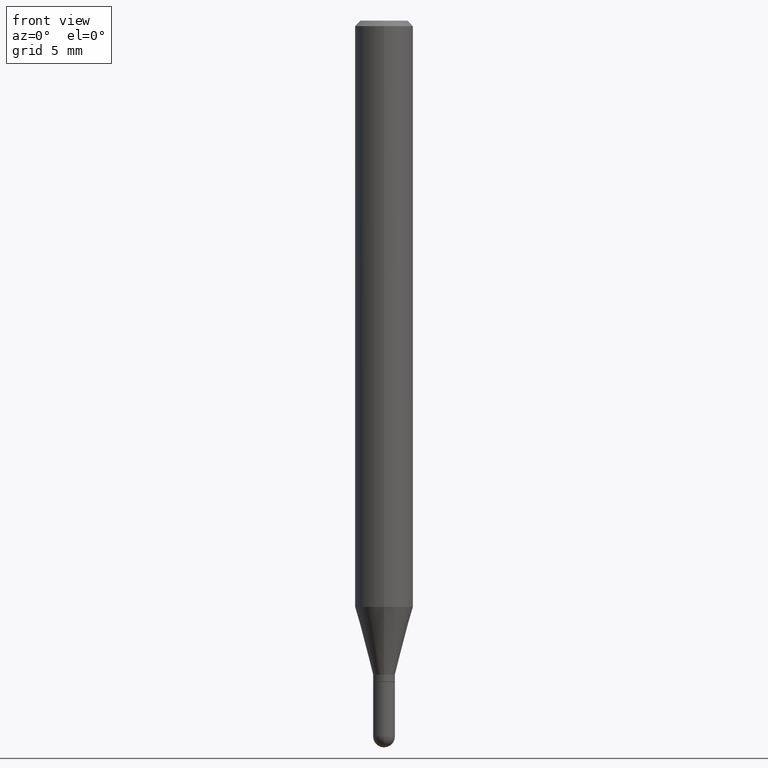
[diagram: clean part render]
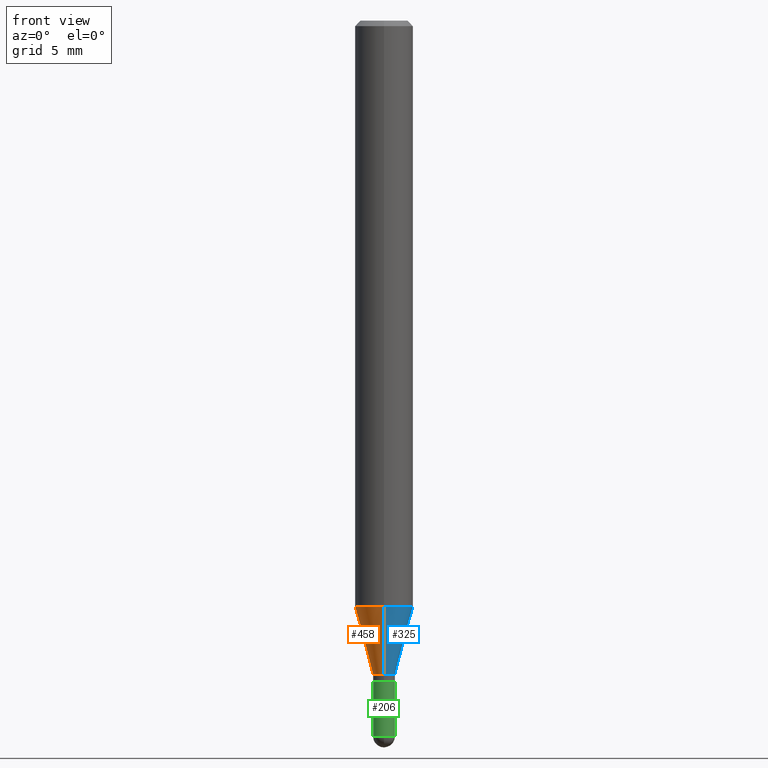
[diagram: same view with three faces highlighted in distinct colors, each labeled with its STEP entity id]
A machine part, front view with three faces highlighted in distinct colors.
Their STEP definitions:

[orange] entity #458 — the highlighted conical surface has half-angle 15 deg.
#15 = LINE ( 'NONE', #183, #130 ) ;
#35 = DIRECTION ( 'NONE',  ( -2.445463423752014680E-29, 3.491489046793725372E-15, 1.000000000000000000 ) ) ;
#63 = EDGE_CURVE ( 'NONE', #391, #507, #15, .T. ) ;
#87 = EDGE_LOOP ( 'NONE', ( #147, #276, #268, #244 ) ) ;
#104 = CARTESIAN_POINT ( 'NONE',  ( 4.332138455176693221E-29, -6.185172846395084500E-15, -1.771499999999999853 ) ) ;
#118 = VERTEX_POINT ( 'NONE', #162 ) ;
#125 = AXIS2_PLACEMENT_3D ( 'NONE', #104, #35, #139 ) ;
#128 = LINE ( 'NONE', #404, #492 ) ;
#130 = VECTOR ( 'NONE', #187, 39.37007874015748854 ) ;
#139 = DIRECTION ( 'NONE',  ( -6.982962677686265133E-15, -1.000000000000000000, 0.000000000000000000 ) ) ;
#142 = CARTESIAN_POINT ( 'NONE',  ( -5.499083108677547901E-16, -0.07875000000000556555, -1.587883100267612591 ) ) ;
#146 = CIRCLE ( 'NONE', #125, 0.02955000000000019417 ) ;
#147 = ORIENTED_EDGE ( 'NONE', *, *, #442, .F. ) ;
#162 = CARTESIAN_POINT ( 'NONE',  ( 5.595524044111173573E-16, 0.07874999999999443556, -1.587883100267613035 ) ) ;
#183 = CARTESIAN_POINT ( 'NONE',  ( -2.063465471255871845E-16, -0.02955000000000637672, -1.771499999999999853 ) ) ;
#187 = DIRECTION ( 'NONE',  ( -1.807323732225332900E-15, -0.2588190451025185190, 0.9659258262890689783 ) ) ;
#226 = DIRECTION ( 'NONE',  ( -6.982962677686265133E-15, -1.000000000000000000, 0.000000000000000000 ) ) ;
#244 = ORIENTED_EDGE ( 'NONE', *, *, #285, .F. ) ;
#260 = DIRECTION ( 'NONE',  ( -2.445463423752014680E-29, 3.491489046793725372E-15, 1.000000000000000000 ) ) ;
#261 = FACE_OUTER_BOUND ( 'NONE', #87, .T. ) ;
#268 = ORIENTED_EDGE ( 'NONE', *, *, #63, .T. ) ;
#272 = CONICAL_SURFACE ( 'NONE', #440, 0.02955000000000019417, 0.2617993877991506291 ) ;
#276 = ORIENTED_EDGE ( 'NONE', *, *, #468, .T. ) ;
#285 = EDGE_CURVE ( 'NONE', #118, #507, #472, .T. ) ;
#316 = CARTESIAN_POINT ( 'NONE',  ( -2.063465471255871845E-16, -0.02955000000000637672, -1.771499999999999853 ) ) ;
#339 = CARTESIAN_POINT ( 'NONE',  ( 3.883110042898400634E-29, -5.544076452173231922E-15, -1.587883100267612813 ) ) ;
#346 = DIRECTION ( 'NONE',  ( -6.982962677686264344E-15, -1.000000000000000000, 3.469013325287953293E-15 ) ) ;
#354 = AXIS2_PLACEMENT_3D ( 'NONE', #339, #260, #346 ) ;
#365 = DIRECTION ( 'NONE',  ( 1.839019923739602682E-15, 0.2588190451025252914, 0.9659258262890670910 ) ) ;
#391 = VERTEX_POINT ( 'NONE', #316 ) ;
#404 = CARTESIAN_POINT ( 'NONE',  ( 2.099653784171542487E-16, 0.02954999999999400814, -1.771499999999999853 ) ) ;
#428 = VERTEX_POINT ( 'NONE', #443 ) ;
#440 = AXIS2_PLACEMENT_3D ( 'NONE', #459, #504, #226 ) ;
#442 = EDGE_CURVE ( 'NONE', #428, #118, #128, .T. ) ;
#443 = CARTESIAN_POINT ( 'NONE',  ( 3.847588914141360372E-16, 0.02954999999999400814, -1.771499999999999853 ) ) ;
#458 = ADVANCED_FACE ( 'NONE', ( #261 ), #272, .T. ) ;
#459 = CARTESIAN_POINT ( 'NONE',  ( 4.332138455176693221E-29, -6.185172846395084500E-15, -1.771499999999999853 ) ) ;
#468 = EDGE_CURVE ( 'NONE', #428, #391, #146, .T. ) ;
#472 = CIRCLE ( 'NONE', #354, 0.07875000000000000056 ) ;
#492 = VECTOR ( 'NONE', #365, 39.37007874015748143 ) ;
#504 = DIRECTION ( 'NONE',  ( -2.445463423752014680E-29, 3.491489046793725372E-15, 1.000000000000000000 ) ) ;
#507 = VERTEX_POINT ( 'NONE', #142 ) ;

[blue] entity #325 — the highlighted conical surface has half-angle 15 deg.
#15 = LINE ( 'NONE', #183, #130 ) ;
#32 = CIRCLE ( 'NONE', #426, 0.07875000000000000056 ) ;
#34 = DIRECTION ( 'NONE',  ( -6.982962677686265133E-15, -1.000000000000000000, 0.000000000000000000 ) ) ;
#51 = ORIENTED_EDGE ( 'NONE', *, *, #442, .T. ) ;
#54 = AXIS2_PLACEMENT_3D ( 'NONE', #195, #474, #126 ) ;
#63 = EDGE_CURVE ( 'NONE', #391, #507, #15, .T. ) ;
#75 = DIRECTION ( 'NONE',  ( -2.445463423752014680E-29, 3.491489046793725372E-15, 1.000000000000000000 ) ) ;
#118 = VERTEX_POINT ( 'NONE', #162 ) ;
#126 = DIRECTION ( 'NONE',  ( -6.982962677686265133E-15, -1.000000000000000000, 0.000000000000000000 ) ) ;
#128 = LINE ( 'NONE', #404, #492 ) ;
#130 = VECTOR ( 'NONE', #187, 39.37007874015748854 ) ;
#142 = CARTESIAN_POINT ( 'NONE',  ( -5.499083108677547901E-16, -0.07875000000000556555, -1.587883100267612591 ) ) ;
#162 = CARTESIAN_POINT ( 'NONE',  ( 5.595524044111173573E-16, 0.07874999999999443556, -1.587883100267613035 ) ) ;
#176 = ORIENTED_EDGE ( 'NONE', *, *, #307, .F. ) ;
#178 = CIRCLE ( 'NONE', #508, 0.02955000000000019417 ) ;
#183 = CARTESIAN_POINT ( 'NONE',  ( -2.063465471255871845E-16, -0.02955000000000637672, -1.771499999999999853 ) ) ;
#187 = DIRECTION ( 'NONE',  ( -1.807323732225332900E-15, -0.2588190451025185190, 0.9659258262890689783 ) ) ;
#195 = CARTESIAN_POINT ( 'NONE',  ( 4.332138455176693221E-29, -6.185172846395084500E-15, -1.771499999999999853 ) ) ;
#202 = CARTESIAN_POINT ( 'NONE',  ( 3.883110042898400634E-29, -5.544076452173231922E-15, -1.587883100267612813 ) ) ;
#229 = CONICAL_SURFACE ( 'NONE', #54, 0.02955000000000019417, 0.2617993877991506291 ) ;
#241 = DIRECTION ( 'NONE',  ( -2.445463423752014680E-29, 3.491489046793725372E-15, 1.000000000000000000 ) ) ;
#245 = DIRECTION ( 'NONE',  ( -6.982962677686264344E-15, -1.000000000000000000, 3.469013325287953293E-15 ) ) ;
#291 = EDGE_CURVE ( 'NONE', #391, #428, #178, .T. ) ;
#307 = EDGE_CURVE ( 'NONE', #507, #118, #32, .T. ) ;
#316 = CARTESIAN_POINT ( 'NONE',  ( -2.063465471255871845E-16, -0.02955000000000637672, -1.771499999999999853 ) ) ;
#325 = ADVANCED_FACE ( 'NONE', ( #487 ), #229, .T. ) ;
#356 = EDGE_LOOP ( 'NONE', ( #359, #51, #176, #415 ) ) ;
#359 = ORIENTED_EDGE ( 'NONE', *, *, #291, .T. ) ;
#365 = DIRECTION ( 'NONE',  ( 1.839019923739602682E-15, 0.2588190451025252914, 0.9659258262890670910 ) ) ;
#391 = VERTEX_POINT ( 'NONE', #316 ) ;
#404 = CARTESIAN_POINT ( 'NONE',  ( 2.099653784171542487E-16, 0.02954999999999400814, -1.771499999999999853 ) ) ;
#415 = ORIENTED_EDGE ( 'NONE', *, *, #63, .F. ) ;
#417 = CARTESIAN_POINT ( 'NONE',  ( 4.332138455176693221E-29, -6.185172846395084500E-15, -1.771499999999999853 ) ) ;
#426 = AXIS2_PLACEMENT_3D ( 'NONE', #202, #241, #245 ) ;
#428 = VERTEX_POINT ( 'NONE', #443 ) ;
#442 = EDGE_CURVE ( 'NONE', #428, #118, #128, .T. ) ;
#443 = CARTESIAN_POINT ( 'NONE',  ( 3.847588914141360372E-16, 0.02954999999999400814, -1.771499999999999853 ) ) ;
#474 = DIRECTION ( 'NONE',  ( -2.445463423752014680E-29, 3.491489046793725372E-15, 1.000000000000000000 ) ) ;
#487 = FACE_OUTER_BOUND ( 'NONE', #356, .T. ) ;
#492 = VECTOR ( 'NONE', #365, 39.37007874015748143 ) ;
#507 = VERTEX_POINT ( 'NONE', #142 ) ;
#508 = AXIS2_PLACEMENT_3D ( 'NONE', #417, #75, #34 ) ;

[green] entity #206 — the highlighted cylindrical surface (edge-blend (fillet) strip) has radius 0.7506 mm, axis along (-0, 0, 1).
#1 = CARTESIAN_POINT ( 'NONE',  ( -2.099653784170616315E-16, -0.02955000000000669938, -1.938949999999999729 ) ) ;
#28 = EDGE_CURVE ( 'NONE', #460, #313, #506, .T. ) ;
#48 = ORIENTED_EDGE ( 'NONE', *, *, #113, .T. ) ;
#55 = DIRECTION ( 'NONE',  ( -2.445468806185136597E-29, 3.491481338843145583E-15, 1.000000000000000000 ) ) ;
#58 = VECTOR ( 'NONE', #489, 39.37007874015748143 ) ;
#80 = DIRECTION ( 'NONE',  ( -2.445468806185136597E-29, 3.491481338843145583E-15, 1.000000000000000000 ) ) ;
#113 = EDGE_CURVE ( 'NONE', #240, #295, #283, .T. ) ;
#148 = DIRECTION ( 'NONE',  ( 1.000000000000000000, -6.982962677686261977E-15, 0.000000000000000000 ) ) ;
#149 = VERTEX_POINT ( 'NONE', #299 ) ;
#155 = DIRECTION ( 'NONE',  ( 1.000000000000000000, -6.982962677686261977E-15, 0.000000000000000000 ) ) ;
#160 = CARTESIAN_POINT ( 'NONE',  ( -0.02954999999999999988, 2.099653784171096041E-16, -1.453545319170324550E-30 ) ) ;
#181 = ORIENTED_EDGE ( 'NONE', *, *, #311, .T. ) ;
#188 = CYLINDRICAL_SURFACE ( 'NONE', #281, 0.02954999999999999988 ) ;
#205 = VECTOR ( 'NONE', #312, 39.37007874015748143 ) ;
#206 = ADVANCED_FACE ( 'NONE', ( #210 ), #188, .T. ) ;
#207 = LINE ( 'NONE', #360, #58 ) ;
#210 = FACE_OUTER_BOUND ( 'NONE', #400, .T. ) ;
#238 = ORIENTED_EDGE ( 'NONE', *, *, #408, .T. ) ;
#240 = VERTEX_POINT ( 'NONE', #1 ) ;
#255 = CIRCLE ( 'NONE', #323, 0.02954999999999999988 ) ;
#279 = CARTESIAN_POINT ( 'NONE',  ( 4.741641741752670047E-29, -6.769807741949916508E-15, -1.938949999999999729 ) ) ;
#281 = AXIS2_PLACEMENT_3D ( 'NONE', #420, #80, #293 ) ;
#283 = CIRCLE ( 'NONE', #380, 0.02954999999999999988 ) ;
#293 = DIRECTION ( 'NONE',  ( 1.000000000000000000, -6.982962677686266711E-15, 4.876176775795935793E-29 ) ) ;
#295 = VERTEX_POINT ( 'NONE', #439 ) ;
#299 = CARTESIAN_POINT ( 'NONE',  ( -0.02954999999999999988, -6.302083753692712485E-15, -1.938949999999999729 ) ) ;
#311 = EDGE_CURVE ( 'NONE', #149, #240, #255, .T. ) ;
#312 = DIRECTION ( 'NONE',  ( -2.445468806185136877E-29, 3.491481338843145188E-15, 1.000000000000000000 ) ) ;
#313 = VERTEX_POINT ( 'NONE', #361 ) ;
#317 = CARTESIAN_POINT ( 'NONE',  ( 4.380568272519435501E-29, -6.254290522269726388E-15, -1.791300000000000114 ) ) ;
#320 = CARTESIAN_POINT ( 'NONE',  ( 4.741641741752670047E-29, -6.769807741949916508E-15, -1.938949999999999729 ) ) ;
#323 = AXIS2_PLACEMENT_3D ( 'NONE', #320, #55, #155 ) ;
#349 = ORIENTED_EDGE ( 'NONE', *, *, #28, .F. ) ;
#352 = DIRECTION ( 'NONE',  ( -2.445468806185136597E-29, 3.491481338843145583E-15, 1.000000000000000000 ) ) ;
#360 = CARTESIAN_POINT ( 'NONE',  ( 0.02954999999999999988, -2.063465471256291914E-16, 1.440910237247699070E-30 ) ) ;
#361 = CARTESIAN_POINT ( 'NONE',  ( 0.02954999999999999988, -6.460637069395355998E-15, -1.791300000000000114 ) ) ;
#367 = EDGE_CURVE ( 'NONE', #149, #460, #392, .T. ) ;
#380 = AXIS2_PLACEMENT_3D ( 'NONE', #279, #352, #148 ) ;
#392 = LINE ( 'NONE', #160, #205 ) ;
#400 = EDGE_LOOP ( 'NONE', ( #475, #181, #48, #238, #349 ) ) ;
#408 = EDGE_CURVE ( 'NONE', #295, #313, #207, .T. ) ;
#420 = CARTESIAN_POINT ( 'NONE',  ( 0.000000000000000000, 0.000000000000000000, 0.000000000000000000 ) ) ;
#439 = CARTESIAN_POINT ( 'NONE',  ( 0.02954999999999999988, -6.718395679235450664E-15, -1.938949999999999729 ) ) ;
#454 = CARTESIAN_POINT ( 'NONE',  ( -0.02954999999999999988, -6.302083753692712485E-15, -1.791300000000000114 ) ) ;
#460 = VERTEX_POINT ( 'NONE', #454 ) ;
#471 = DIRECTION ( 'NONE',  ( 1.000000000000000000, -6.982962677686261977E-15, 0.000000000000000000 ) ) ;
#475 = ORIENTED_EDGE ( 'NONE', *, *, #367, .F. ) ;
#485 = AXIS2_PLACEMENT_3D ( 'NONE', #317, #498, #471 ) ;
#489 = DIRECTION ( 'NONE',  ( -2.445468806185136877E-29, 3.491481338843145188E-15, 1.000000000000000000 ) ) ;
#498 = DIRECTION ( 'NONE',  ( -2.445468806185136597E-29, 3.491481338843145583E-15, 1.000000000000000000 ) ) ;
#506 = CIRCLE ( 'NONE', #485, 0.02954999999999999988 ) ;